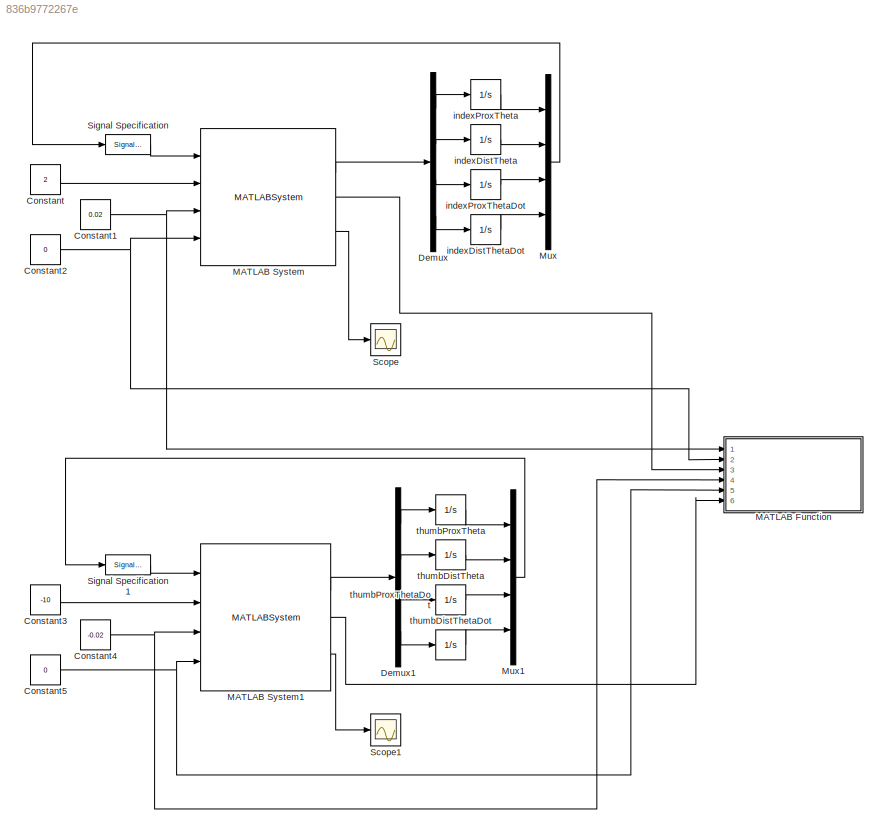
MODEL slx_836b9772267e
KIND model
CONFIG AbsTol = auto
CONFIG FixedStep = auto
CONFIG MaxStep = auto
CONFIG MinStep = auto
CONFIG RelTol = 1e-3
CONFIG SampleTimeConstraint = Unconstrained
CONFIG Solver = VariableStepAuto
CONFIG SolverMode = Auto
CONFIG SolverName = VariableStepAuto
CONFIG StartTime = 0.0
CONFIG StopTime = 1
BLOCK [Constant] Constant
  Value = 2
BLOCK [Constant] Constant1
  Value = 0.02
BLOCK [Constant] Constant2
  Value = 0
BLOCK [Constant] Constant3
  Value = -10
BLOCK [Constant] Constant4
  Value = -0.02
BLOCK [Constant] Constant5
  Value = 0
BLOCK [Demux] Demux
  DisplayOption = bar
  Ports = [1, 4]
BLOCK [Demux] Demux1
  DisplayOption = bar
  Ports = [1, 4]
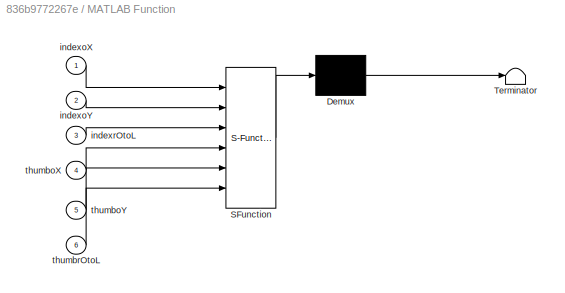
BLOCK [SubSystem] MATLAB Function
  ErrorFcn = Stateflow.Translate.translate
  PermitHierarchicalResolution = ExplicitOnly
  Ports = [6]
  RequestExecContextInheritance = off
  SFBlockType = MATLAB Function
  TreatAsAtomicUnit = on
  Variant = off
BLOCK [Demux] MATLAB Function/ Demux 
  Outputs = 1
  Ports = [1, 1]
BLOCK [S-Function] MATLAB Function/ SFunction 
  EnableBusSupport = on
  FunctionName = sf_sfun
  PortCounts = [6 1]
  Ports = [6, 1]
  SFunctionDeploymentMode = off
  Tag = Stateflow S-Function twoFingerSim 2
BLOCK [Terminator] MATLAB Function/ Terminator 
BLOCK [Inport] MATLAB Function/indexoX
  IconDisplay = Port number
BLOCK [Inport] MATLAB Function/indexoY
  IconDisplay = Port number
  Port = 2
BLOCK [Inport] MATLAB Function/indexrOtoL
  IconDisplay = Port number
  Port = 3
BLOCK [Inport] MATLAB Function/thumboX
  IconDisplay = Port number
  Port = 4
BLOCK [Inport] MATLAB Function/thumboY
  IconDisplay = Port number
  Port = 5
BLOCK [Inport] MATLAB Function/thumbrOtoL
  IconDisplay = Port number
  Port = 6
BLOCK [MATLABSystem] MATLAB System
  MaskDisplay = disp('Index');\nport_label('input',1,'initVal');\nport_label('input',2,'fa');\nport_label('input',3,'oX');\nport_label('input',4,'oY');\nport_label('output',1,'xDot');\nport_label('output',2,'rOtoL');\nport_label('output',3,'fc');
  MaskType = Index
  Ports = [4, 3]
  SimulateUsing = Interpreted execution
  System = Index
  dD = -0.01
  dP = -0.01
  kD = -0.185
  kP = -0.043
  lD = 0.1
  lP = 0.1
  mD = 0.02
  mP = 0.02
  rD = 0.012
  rP = 0.02
  thetaD = pi/3
  thetaP = pi/10
BLOCK [MATLABSystem] MATLAB System1
  MaskDisplay = disp('Thumb');\nport_label('input',1,'initVal');\nport_label('input',2,'fa');\nport_label('input',3,'oX');\nport_label('input',4,'oY');\nport_label('output',1,'xDot');\nport_label('output',2,'rOtoL');\nport_label('output',3,'fc');
  MaskType = Thumb
  Ports = [4, 3]
  SimulateUsing = Interpreted execution
  System = Thumb
  dD = -0.01
  dP = -0.01
  kD = -5
  kP = -1
  lD = 0.1
  lP = 0.1
  mD = 0.02
  mP = 0.02
  rD = 0.012
  rP = 0.02
  thetaD = -pi/3
  thetaP = pi-pi/10
BLOCK [Mux] Mux
  DisplayOption = bar
  Ports = [4, 1]
BLOCK [Mux] Mux1
  DisplayOption = bar
  Ports = [4, 1]
BLOCK [Scope] Scope
  Ports = [1]
  ScopeSpecificationString = Simulink.scopes.TimeScopeBlockCfg('CurrentConfiguration', extmgr.ConfigurationSet(extmgr.Configuration('Core','General UI',true),extmgr.Configuration('Core','Source UI',true),extmgr.Configuration('Sources','WiredSimulink',true,'DataLoggingLimitDataPoints',true,'DataLoggingSaveFormat','Array','DataLoggingDecimation','1','DataLoggingDecimateData',true),extmgr.Configuration('Visuals','Time Domain',tr...<+1530ch>
BLOCK [Scope] Scope1
  Ports = [1]
  ScopeSpecificationString = Simulink.scopes.TimeScopeBlockCfg('CurrentConfiguration', extmgr.ConfigurationSet(extmgr.Configuration('Core','General UI',true),extmgr.Configuration('Core','Source UI',true),extmgr.Configuration('Sources','WiredSimulink',true,'DataLoggingLimitDataPoints',true,'DataLoggingSaveFormat','Array','DataLoggingDecimation','1','DataLoggingDecimateData',true,'DataLoggingVariableName','ScopeData1'),extmgr.C...<+1569ch>
BLOCK [SignalSpecification] Signal Specification
  Dimensions = 4
BLOCK [SignalSpecification] Signal Specification1
  Dimensions = 4
BLOCK [Integrator] indexDistTheta
  ContinuousStateAttributes = 'indexDistTheta'
  InitialCondition = pi/3
  Ports = [1, 1]
BLOCK [Integrator] indexDistThetaDot
  ContinuousStateAttributes = 'indexDistThetaDot'
  Ports = [1, 1]
BLOCK [Integrator] indexProxTheta
  ContinuousStateAttributes = 'indexProxTheta'
  InitialCondition = pi/10
  Ports = [1, 1]
BLOCK [Integrator] indexProxThetaDot
  ContinuousStateAttributes = 'indexProxThetaDot'
  Ports = [1, 1]
BLOCK [Integrator] thumbDistTheta
  ContinuousStateAttributes = 'thumbDistTheta'
  InitialCondition = -pi/3
  Ports = [1, 1]
BLOCK [Integrator] thumbDistThetaDot
  ContinuousStateAttributes = 'thumbDistThetaDot'
  Ports = [1, 1]
BLOCK [Integrator] thumbProxTheta
  ContinuousStateAttributes = 'thumbProxTheta'
  InitialCondition = pi-pi/10
  Ports = [1, 1]
BLOCK [Integrator] thumbProxThetaDot
  ContinuousStateAttributes = 'thumbProxThetaDot'
  Ports = [1, 1]
NET Constant1:1 -> MATLAB Function:1, MATLAB System:3
NET Constant2:1 -> MATLAB Function:2, MATLAB System:4
LINE Constant3:1 -> MATLAB System1:2
NET Constant4:1 -> MATLAB Function:4, MATLAB System1:3
NET Constant5:1 -> MATLAB Function:5, MATLAB System1:4
LINE Constant:1 -> MATLAB System:2
LINE Demux1:1 -> thumbProxTheta:1
LINE Demux1:2 -> thumbDistTheta:1
LINE Demux1:3 -> thumbProxThetaDot:1
LINE Demux1:4 -> thumbDistThetaDot:1
LINE Demux:1 -> indexProxTheta:1
LINE Demux:2 -> indexDistTheta:1
LINE Demux:3 -> indexProxThetaDot:1
LINE Demux:4 -> indexDistThetaDot:1
LINE MATLAB System1:1 -> Demux1:1
LINE MATLAB System1:2 -> MATLAB Function:6
LINE MATLAB System1:3 -> Scope1:1
LINE MATLAB System:1 -> Demux:1
LINE MATLAB System:2 -> MATLAB Function:3
LINE MATLAB System:3 -> Scope:1
LINE Mux1:1 -> Signal Specification1:1
LINE Mux:1 -> Signal Specification:1
LINE Signal Specification1:1 -> MATLAB System1:1
LINE Signal Specification:1 -> MATLAB System:1
LINE indexDistTheta:1 -> Mux:2
LINE indexDistThetaDot:1 -> Mux:4
LINE indexProxTheta:1 -> Mux:1
LINE indexProxThetaDot:1 -> Mux:3
LINE thumbDistTheta:1 -> Mux1:2
LINE thumbDistThetaDot:1 -> Mux1:4
LINE thumbProxTheta:1 -> Mux1:1
LINE thumbProxThetaDot:1 -> Mux1:3
note: NET lines group one-source signal fan-out (src -> all destinations, sorted); 1:1 wires keep LINE
CHART MATLAB Function states=1 transitions=1
  STATE_LABEL 'eML_blk_kernel()'
  STATE_LABEL "SCRIPT:\nfunction plotSim(indexoX,indexoY,indexrOtoL,thumboX,thumboY,thumbrOtoL)\n%#codegen\n    % Call figure\n    figure(1);\n    clf;\n    hold on;\n    % Draw Proximal components of finger\n%     viscircles(finger.origin,0.005,'Color', 'k','LineWidth',8);\n    plot([indexoX indexrOtoL(1,1)],[indexoY indexrOtoL(2,1)],'LineWidth',8,'Color', 'k');\n    % Draw Distal components of finger\n%     viscircles(rO...<+481ch>"
